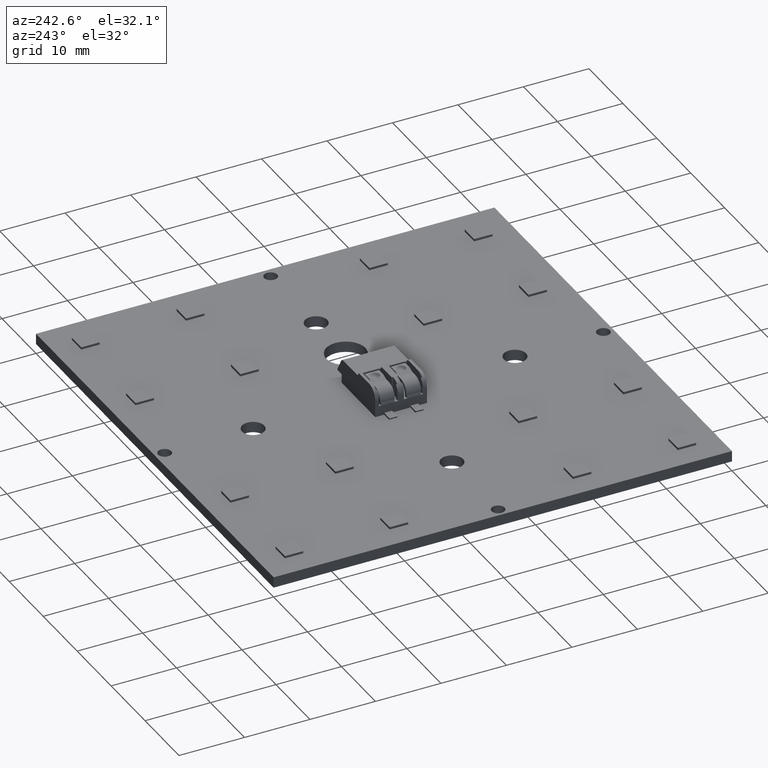
[diagram: clean part render]
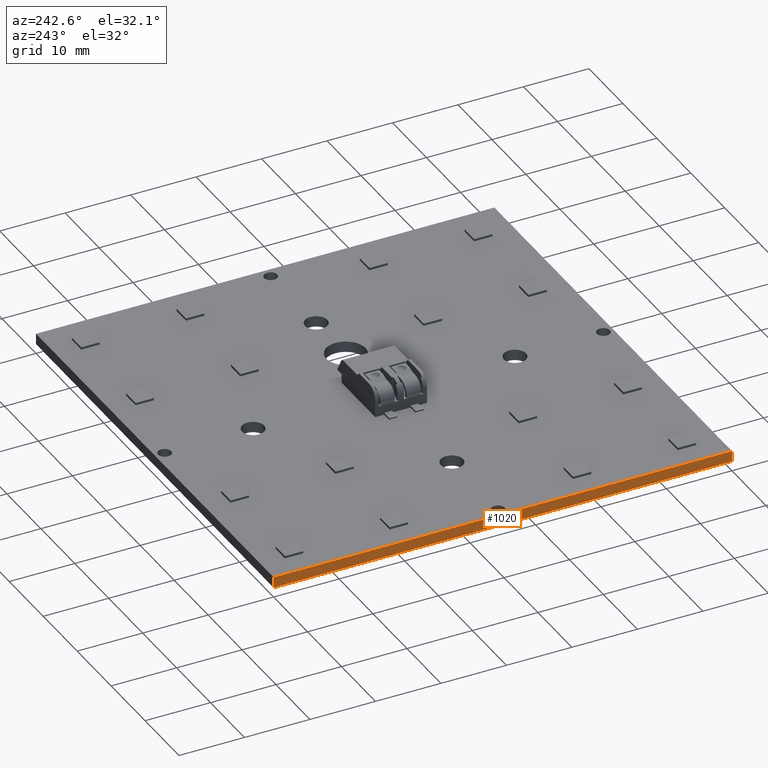
[diagram: same view with one face highlighted and labeled with its STEP entity id]
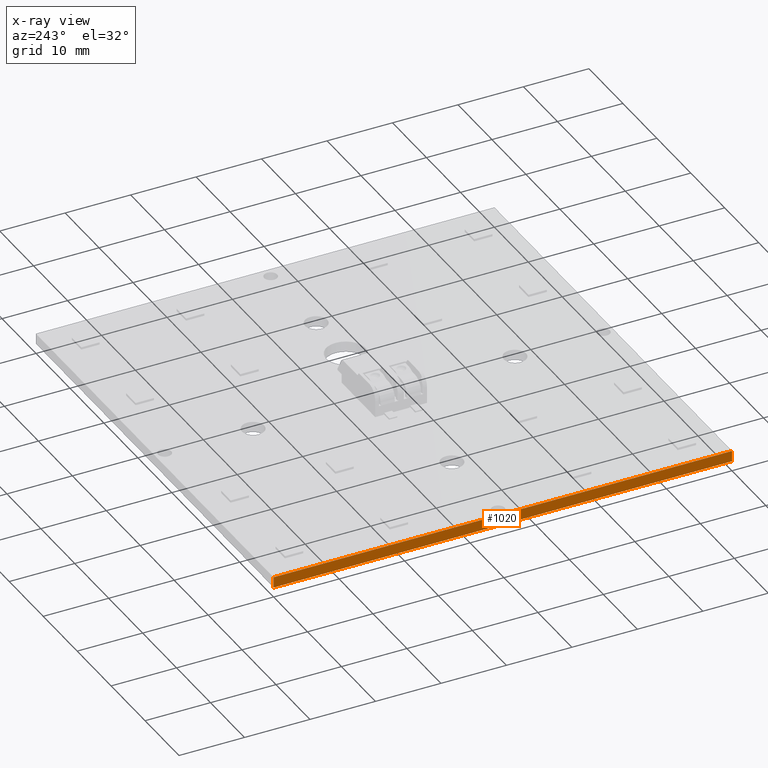
[diagram: x-ray of the same camera — body ghosted, the highlighted face saturated]
A machine part, auxiliary view. The second image highlights one B-rep face of the part: STEP entity #1020.
The next image is the same camera in x-ray: the body ghosted, the highlighted face saturated — about 0% of this face is hidden behind the body in this view.
In plain terms, the highlighted planar face has unit normal (-1, 0, 0).
Its self-contained STEP definition (entity closure, byte-faithful):
#1020=ADVANCED_FACE('',(#1315),#1200,.T.);
#1200=PLANE('',#4211);
#1315=FACE_OUTER_BOUND('',#1482,.T.);
#1482=EDGE_LOOP('',(#1697,#1698,#1699,#1700));
#1697=ORIENTED_EDGE('',*,*,#3018,.F.);
#1698=ORIENTED_EDGE('',*,*,#3017,.F.);
#1699=ORIENTED_EDGE('',*,*,#3019,.T.);
#1700=ORIENTED_EDGE('',*,*,#3020,.T.);
#2683=VERTEX_POINT('',#5521);
#2684=VERTEX_POINT('',#5523);
#2685=VERTEX_POINT('',#5527);
#2686=VERTEX_POINT('',#5529);
#3017=EDGE_CURVE('',#2684,#2683,#3512,.T.);
#3018=EDGE_CURVE('',#2683,#2685,#3513,.T.);
#3019=EDGE_CURVE('',#2684,#2686,#3514,.T.);
#3020=EDGE_CURVE('',#2686,#2685,#3515,.T.);
#3512=LINE('',#5524,#3863);
#3513=LINE('',#5526,#3864);
#3514=LINE('',#5528,#3865);
#3515=LINE('',#5530,#3866);
#3863=VECTOR('',#4535,1.);
#3864=VECTOR('',#4538,1.);
#3865=VECTOR('',#4539,1.);
#3866=VECTOR('',#4540,1.);
#4211=AXIS2_PLACEMENT_3D('',#5531,#4541,#4542);
#4535=DIRECTION('',(0.,0.,1.));
#4538=DIRECTION('',(0.,-1.,0.));
#4539=DIRECTION('',(0.,-1.,0.));
#4540=DIRECTION('',(0.,0.,1.));
#4541=DIRECTION('',(-1.,0.,0.));
#4542=DIRECTION('',(0.,0.,1.));
#5521=CARTESIAN_POINT('',(0.,70.,0.));
#5523=CARTESIAN_POINT('',(0.,70.,-1.65));
#5524=CARTESIAN_POINT('',(0.,70.,-1.65));
#5526=CARTESIAN_POINT('',(0.,70.,0.));
#5527=CARTESIAN_POINT('',(0.,0.,0.));
#5528=CARTESIAN_POINT('',(0.,70.,-1.65));
#5529=CARTESIAN_POINT('',(0.,0.,-1.65));
#5530=CARTESIAN_POINT('',(0.,0.,-1.65));
#5531=CARTESIAN_POINT('',(0.,70.,-1.65));